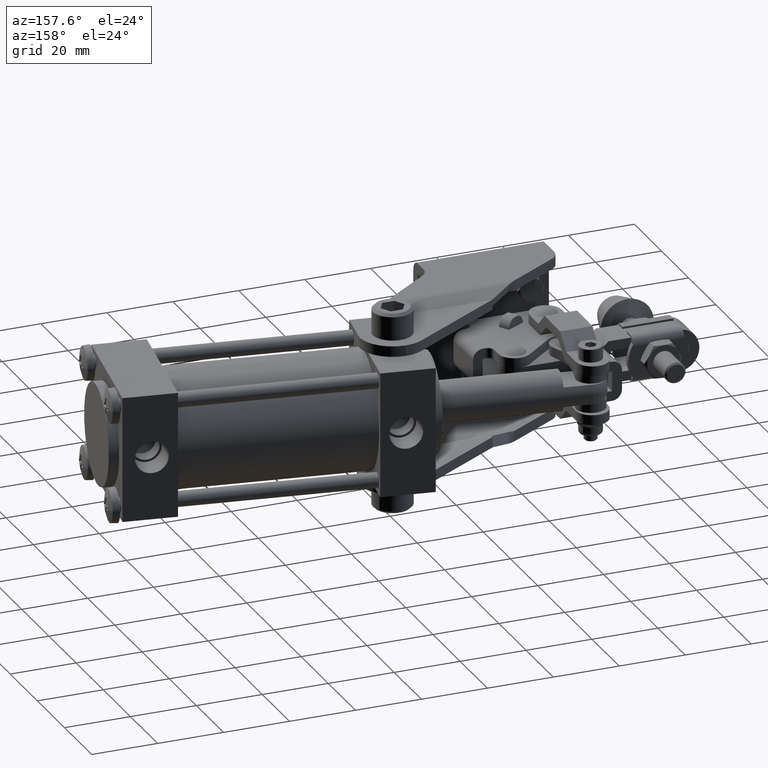
[diagram: clean part render]
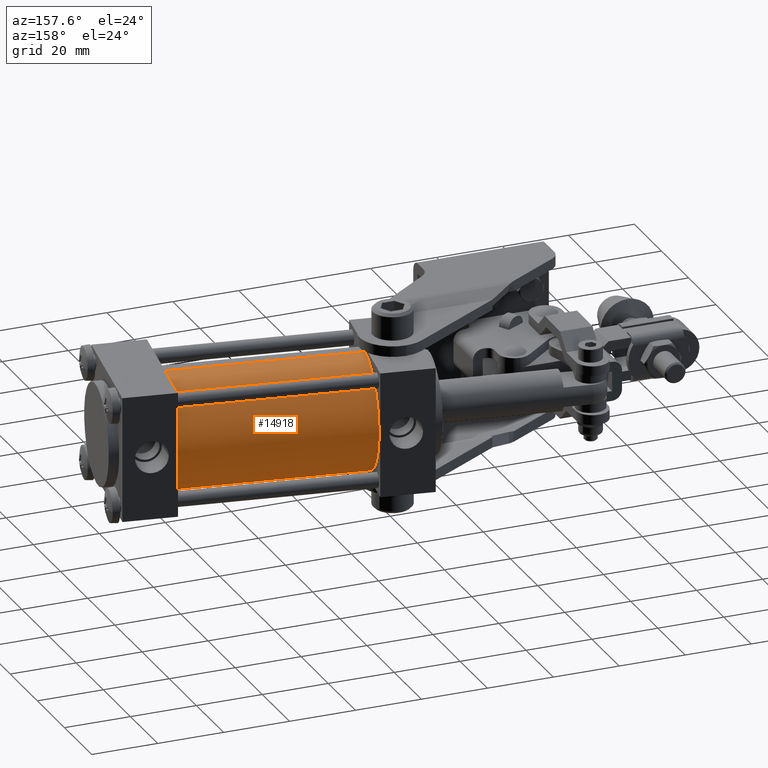
[diagram: same view with one face highlighted and labeled with its STEP entity id]
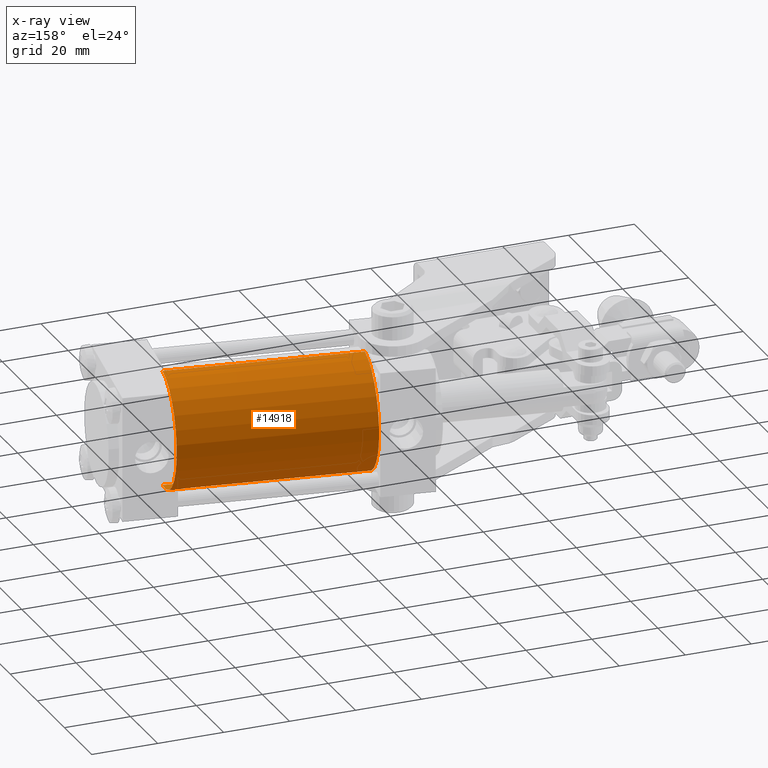
[diagram: x-ray of the same camera — body ghosted, the highlighted face saturated]
A machine part, auxiliary view. The second image highlights one B-rep face of the part: STEP entity #14918.
The next image is the same camera in x-ray: the body ghosted, the highlighted face saturated — about 0% of this face is hidden behind the body in this view.
In plain terms, the highlighted cylindrical surface (partial cylindrical patch) has radius 17.5 mm, axis along (-0.9874, 0.1585, 0).
Its self-contained STEP definition (entity closure, byte-faithful):
#1097 = ORIENTED_EDGE ( 'NONE', *, *, #8312, .F. ) ;
#3184 = CARTESIAN_POINT ( 'NONE',  ( 84.76141011191929000, 29.48839754560913200, -17.50000000000018500 ) ) ;
#3264 = CIRCLE ( 'NONE', #20506, 17.50000000000000400 ) ;
#4716 = VERTEX_POINT ( 'NONE', #18073 ) ;
#6734 = CYLINDRICAL_SURFACE ( 'NONE', #18910, 17.50000000000000400 ) ;
#6926 = DIRECTION ( 'NONE',  ( 4.202987164652377500E-014, 2.638762224600148300E-013, -1.000000000000000000 ) ) ;
#7181 = VERTEX_POINT ( 'NONE', #16638 ) ;
#7734 = AXIS2_PLACEMENT_3D ( 'NONE', #25202, #10877, #27585 ) ;
#7934 = CIRCLE ( 'NONE', #7734, 17.50000000000000400 ) ;
#8092 = CARTESIAN_POINT ( 'NONE',  ( 27.19881268318731300, 38.73163167970636100, 17.49999999999983300 ) ) ;
#8312 = EDGE_CURVE ( 'NONE', #4716, #11535, #3264, .T. ) ;
#8903 = FACE_OUTER_BOUND ( 'NONE', #16082, .T. ) ;
#8977 = DIRECTION ( 'NONE',  ( -4.202987164652377500E-014, -2.638762224600148300E-013, 1.000000000000000000 ) ) ;
#10877 = DIRECTION ( 'NONE',  ( 0.9873515853984645700, -0.1585460400361314000, -1.306212789964222800E-016 ) ) ;
#11535 = VERTEX_POINT ( 'NONE', #24466 ) ;
#12065 = EDGE_CURVE ( 'NONE', #11535, #24759, #28332, .T. ) ;
#13571 = CARTESIAN_POINT ( 'NONE',  ( 84.76141011191781200, 29.48839754559989500, 17.49999999999982600 ) ) ;
#13702 = DIRECTION ( 'NONE',  ( -0.9873515853984645700, 0.1585460400361314000, 1.306212789964222800E-016 ) ) ;
#13708 = DIRECTION ( 'NONE',  ( 0.9873515853984645700, -0.1585460400361314000, -1.306212789964222800E-016 ) ) ;
#14918 = ADVANCED_FACE ( 'NONE', ( #8903 ), #6734, .T. ) ;
#15097 = ORIENTED_EDGE ( 'NONE', *, *, #19647, .T. ) ;
#16082 = EDGE_LOOP ( 'NONE', ( #1097, #15097, #23042, #22140 ) ) ;
#16638 = CARTESIAN_POINT ( 'NONE',  ( 27.19881268318879800, 38.73163167971559100, -17.50000000000017800 ) ) ;
#18073 = CARTESIAN_POINT ( 'NONE',  ( 84.76141011191929000, 29.48839754560913200, -17.50000000000018500 ) ) ;
#18910 = AXIS2_PLACEMENT_3D ( 'NONE', #23298, #13702, #8977 ) ;
#19647 = EDGE_CURVE ( 'NONE', #4716, #7181, #29301, .T. ) ;
#20437 = CARTESIAN_POINT ( 'NONE',  ( 84.76141011191855100, 29.48839754560451400, -1.809237422234682100E-013 ) ) ;
#20506 = AXIS2_PLACEMENT_3D ( 'NONE', #20437, #13708, #6926 ) ;
#21467 = VECTOR ( 'NONE', #27178, 999.9999999999998900 ) ;
#22019 = VECTOR ( 'NONE', #30696, 999.9999999999998900 ) ;
#22140 = ORIENTED_EDGE ( 'NONE', *, *, #12065, .F. ) ;
#23042 = ORIENTED_EDGE ( 'NONE', *, *, #29034, .T. ) ;
#23298 = CARTESIAN_POINT ( 'NONE',  ( 84.76141011191855100, 29.48839754560451400, -1.809237422234682100E-013 ) ) ;
#24466 = CARTESIAN_POINT ( 'NONE',  ( 84.76141011191781200, 29.48839754559989500, 17.49999999999982600 ) ) ;
#24759 = VERTEX_POINT ( 'NONE', #8092 ) ;
#25202 = CARTESIAN_POINT ( 'NONE',  ( 27.19881268318805600, 38.73163167971097900, -1.733085216579767900E-013 ) ) ;
#27178 = DIRECTION ( 'NONE',  ( -0.9873515853984646800, 0.1585460400361314300, 1.306212789964223100E-016 ) ) ;
#27585 = DIRECTION ( 'NONE',  ( 4.222812575806398100E-014, 2.640744765715550300E-013, -1.000000000000000000 ) ) ;
#28332 = LINE ( 'NONE', #13571, #22019 ) ;
#29034 = EDGE_CURVE ( 'NONE', #7181, #24759, #7934, .T. ) ;
#29301 = LINE ( 'NONE', #3184, #21467 ) ;
#30696 = DIRECTION ( 'NONE',  ( -0.9873515853984646800, 0.1585460400361314300, 1.306212789964223100E-016 ) ) ;